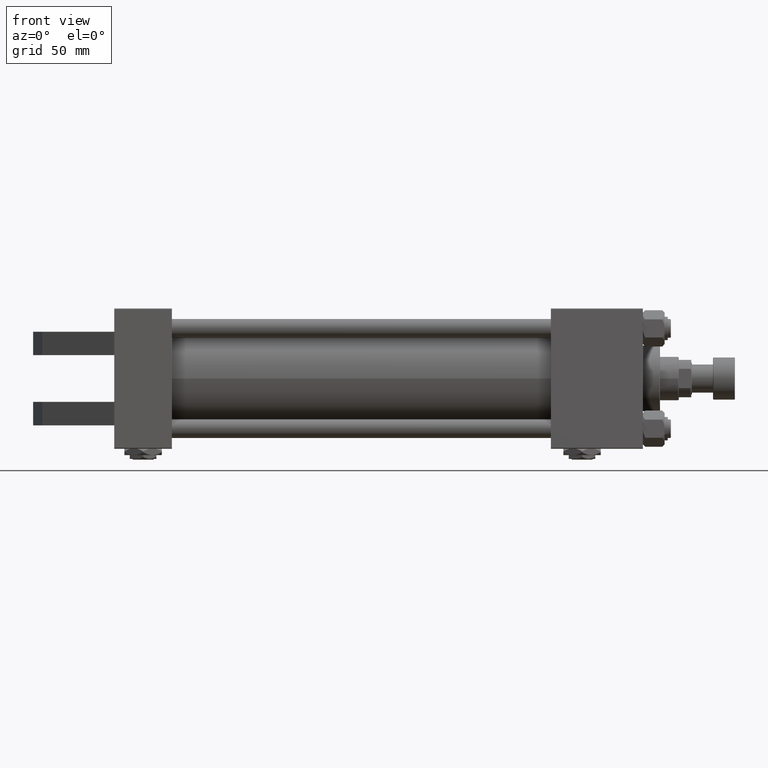
[diagram: clean part render]
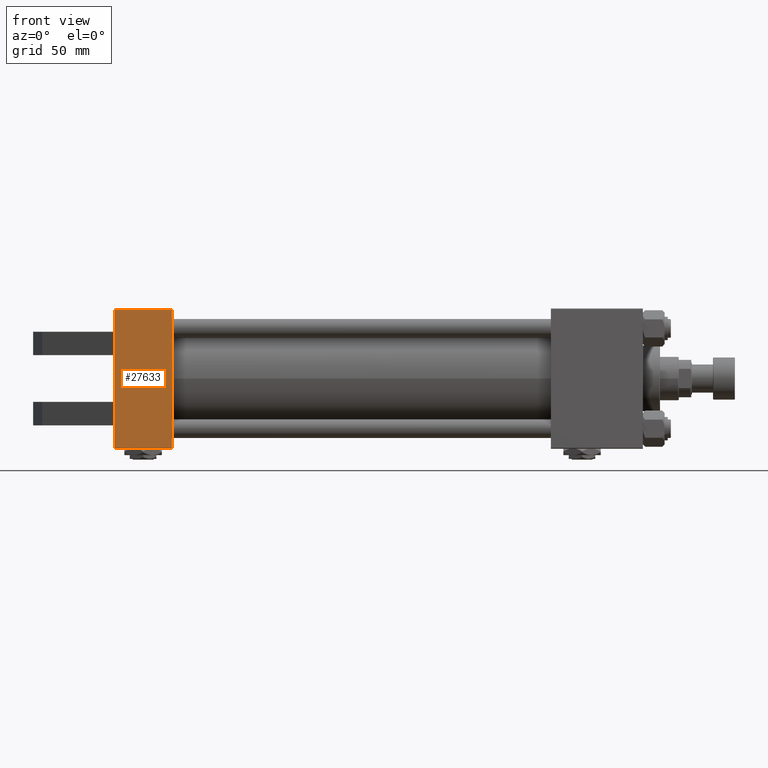
[diagram: same view with one face highlighted and labeled with its STEP entity id]
A machine part, front view. The second image highlights one B-rep face of the part: STEP entity #27633.
In plain terms, the highlighted planar face has unit normal (0, -1, -0).
Its self-contained STEP definition (entity closure, byte-faithful):
#205 = CARTESIAN_POINT ( 'NONE',  ( 0.000000000000000000, 44.99999999999998579, -44.99999999999998579 ) ) ;
#727 = DIRECTION ( 'NONE',  ( 0.000000000000000000, -1.000000000000000000, -1.541976423090495633E-16 ) ) ;
#978 = CARTESIAN_POINT ( 'NONE',  ( 0.000000000000000000, -30.00000000000000000, -45.00000000000000000 ) ) ;
#1191 = DIRECTION ( 'NONE',  ( -1.000000000000000000, 0.000000000000000000, 0.000000000000000000 ) ) ;
#1476 = CARTESIAN_POINT ( 'NONE',  ( 37.00000000000000000, 44.99999999999998579, -44.99999999999998579 ) ) ;
#1680 = CARTESIAN_POINT ( 'NONE',  ( 0.000000000000000000, 44.99999999999998579, -44.99999999999998579 ) ) ;
#2815 = ORIENTED_EDGE ( 'NONE', *, *, #49591, .F. ) ;
#3480 = DIRECTION ( 'NONE',  ( 0.000000000000000000, 1.000000000000000000, 1.541976423090495880E-16 ) ) ;
#5339 = VECTOR ( 'NONE', #26238, 1000.000000000000000 ) ;
#6206 = EDGE_LOOP ( 'NONE', ( #40327, #42093, #18054, #17247, #18539, #12209, #36625, #2815 ) ) ;
#10123 = LINE ( 'NONE', #1680, #5339 ) ;
#10837 = EDGE_CURVE ( 'NONE', #21156, #51042, #10123, .T. ) ;
#11506 = EDGE_CURVE ( 'NONE', #21156, #45102, #30011, .T. ) ;
#12209 = ORIENTED_EDGE ( 'NONE', *, *, #11506, .T. ) ;
#12922 = EDGE_CURVE ( 'NONE', #47088, #37790, #13249, .T. ) ;
#13014 = VECTOR ( 'NONE', #24368, 1000.000000000000000 ) ;
#13040 = LINE ( 'NONE', #21222, #37518 ) ;
#13249 = LINE ( 'NONE', #37293, #13014 ) ;
#15105 = FACE_OUTER_BOUND ( 'NONE', #6206, .T. ) ;
#16399 = CARTESIAN_POINT ( 'NONE',  ( 0.000000000000000000, 30.00000000000000000, -45.00000000000000000 ) ) ;
#17247 = ORIENTED_EDGE ( 'NONE', *, *, #42309, .T. ) ;
#17831 = CARTESIAN_POINT ( 'NONE',  ( 37.00000000000000000, 44.99999999999998579, -44.99999999999998579 ) ) ;
#18054 = ORIENTED_EDGE ( 'NONE', *, *, #36800, .T. ) ;
#18089 = PLANE ( 'NONE',  #37003 ) ;
#18539 = ORIENTED_EDGE ( 'NONE', *, *, #10837, .F. ) ;
#19705 = CARTESIAN_POINT ( 'NONE',  ( 37.00000000000000000, 44.49999999999998579, -44.99999999999998579 ) ) ;
#20195 = DIRECTION ( 'NONE',  ( -0.000000000000000000, -1.000000000000000000, -0.000000000000000000 ) ) ;
#21156 = VERTEX_POINT ( 'NONE', #37838 ) ;
#21222 = CARTESIAN_POINT ( 'NONE',  ( 0.000000000000000000, 30.00000000000000000, -45.00000000000000000 ) ) ;
#21547 = LINE ( 'NONE', #1476, #35479 ) ;
#21805 = DIRECTION ( 'NONE',  ( 0.000000000000000000, -1.000000000000000000, -1.541976423090495633E-16 ) ) ;
#23075 = VECTOR ( 'NONE', #45688, 1000.000000000000000 ) ;
#24368 = DIRECTION ( 'NONE',  ( 1.000000000000000000, 0.000000000000000000, 0.000000000000000000 ) ) ;
#24727 = LINE ( 'NONE', #36614, #39900 ) ;
#25863 = CARTESIAN_POINT ( 'NONE',  ( 0.000000000000000000, 44.99999999999998579, -44.99999999999998579 ) ) ;
#26238 = DIRECTION ( 'NONE',  ( 0.000000000000000000, -1.000000000000000000, -1.541976423090495633E-16 ) ) ;
#27633 = ADVANCED_FACE ( 'NONE', ( #15105 ), #18089, .T. ) ;
#28178 = VECTOR ( 'NONE', #45885, 1000.000000000000000 ) ;
#28991 = LINE ( 'NONE', #205, #38253 ) ;
#30011 = LINE ( 'NONE', #978, #28178 ) ;
#34257 = CARTESIAN_POINT ( 'NONE',  ( 37.00000000000000000, -44.49999999999995737, -45.00000000000000000 ) ) ;
#35479 = VECTOR ( 'NONE', #21805, 1000.000000000000000 ) ;
#36608 = CARTESIAN_POINT ( 'NONE',  ( 0.000000000000000000, -15.00000000000000000, -45.00000000000000000 ) ) ;
#36614 = CARTESIAN_POINT ( 'NONE',  ( 0.000000000000000000, -44.49999999999998579, -45.00000000000000000 ) ) ;
#36625 = ORIENTED_EDGE ( 'NONE', *, *, #43952, .F. ) ;
#36800 = EDGE_CURVE ( 'NONE', #37790, #47380, #21547, .T. ) ;
#37003 = AXIS2_PLACEMENT_3D ( 'NONE', #17831, #51569, #3480 ) ;
#37293 = CARTESIAN_POINT ( 'NONE',  ( 37.00000000000000000, 44.49999999999998579, -44.99999999999998579 ) ) ;
#37518 = VECTOR ( 'NONE', #20195, 1000.000000000000000 ) ;
#37790 = VERTEX_POINT ( 'NONE', #19705 ) ;
#37838 = CARTESIAN_POINT ( 'NONE',  ( 0.000000000000000000, -30.00000000000000000, -45.00000000000000000 ) ) ;
#38253 = VECTOR ( 'NONE', #727, 1000.000000000000000 ) ;
#39900 = VECTOR ( 'NONE', #1191, 1000.000000000000000 ) ;
#40327 = ORIENTED_EDGE ( 'NONE', *, *, #43792, .F. ) ;
#41195 = CARTESIAN_POINT ( 'NONE',  ( 0.000000000000000000, -44.49999999999995737, -45.00000000000000000 ) ) ;
#41832 = VERTEX_POINT ( 'NONE', #46487 ) ;
#42093 = ORIENTED_EDGE ( 'NONE', *, *, #12922, .T. ) ;
#42309 = EDGE_CURVE ( 'NONE', #47380, #51042, #24727, .T. ) ;
#43617 = VERTEX_POINT ( 'NONE', #16399 ) ;
#43792 = EDGE_CURVE ( 'NONE', #47088, #43617, #49922, .T. ) ;
#43952 = EDGE_CURVE ( 'NONE', #41832, #45102, #28991, .T. ) ;
#45102 = VERTEX_POINT ( 'NONE', #36608 ) ;
#45688 = DIRECTION ( 'NONE',  ( 0.000000000000000000, -1.000000000000000000, -1.541976423090495633E-16 ) ) ;
#45885 = DIRECTION ( 'NONE',  ( -0.000000000000000000, 1.000000000000000000, -0.000000000000000000 ) ) ;
#46487 = CARTESIAN_POINT ( 'NONE',  ( 0.000000000000000000, 15.00000000000000711, -44.99999999999999289 ) ) ;
#47088 = VERTEX_POINT ( 'NONE', #51619 ) ;
#47380 = VERTEX_POINT ( 'NONE', #34257 ) ;
#49591 = EDGE_CURVE ( 'NONE', #43617, #41832, #13040, .T. ) ;
#49922 = LINE ( 'NONE', #25863, #23075 ) ;
#51042 = VERTEX_POINT ( 'NONE', #41195 ) ;
#51569 = DIRECTION ( 'NONE',  ( 0.000000000000000000, 1.541976423090495880E-16, -1.000000000000000000 ) ) ;
#51619 = CARTESIAN_POINT ( 'NONE',  ( 0.000000000000000000, 44.49999999999998579, -44.99999999999998579 ) ) ;